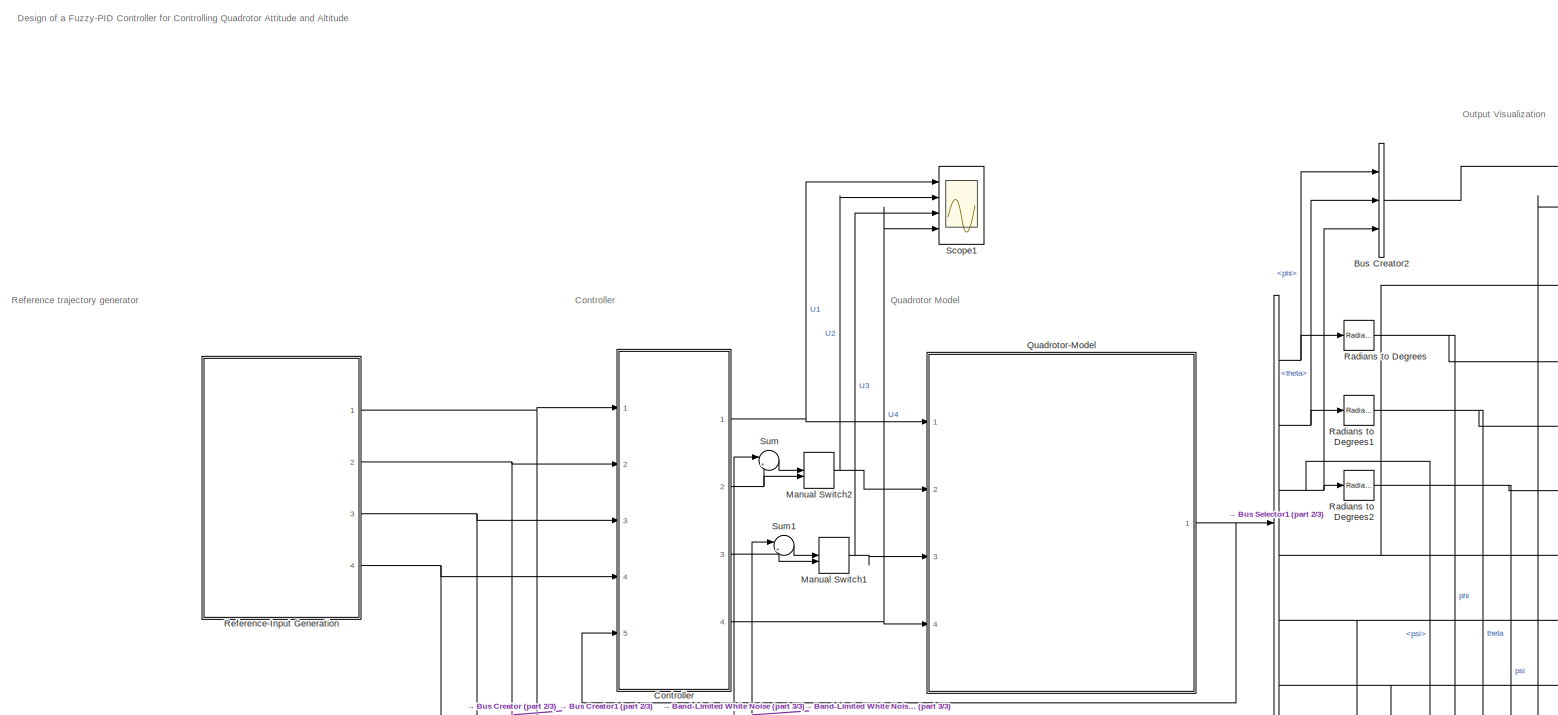
[diagram: root canvas - part 1/3, full width, middle band]
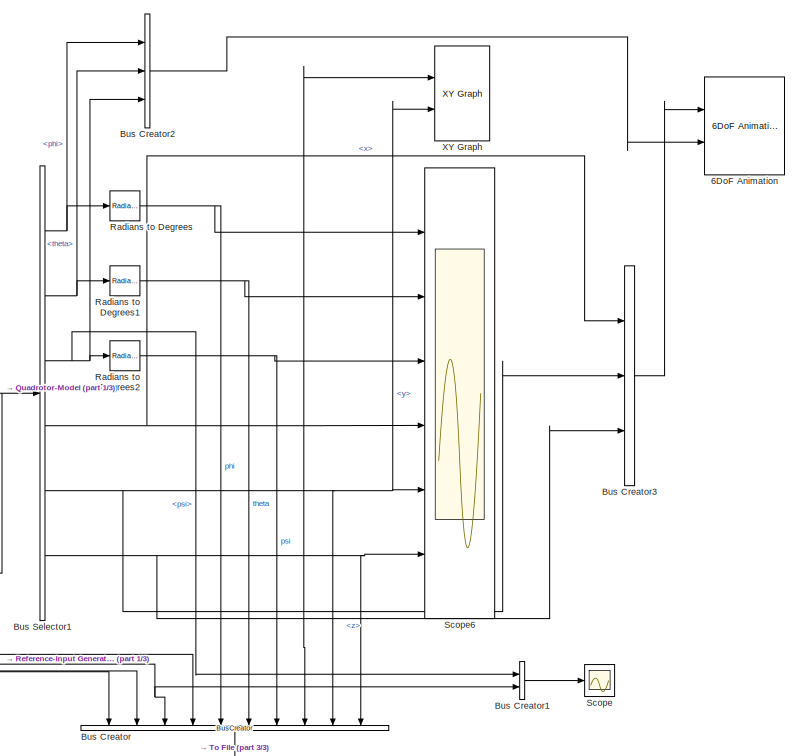
[diagram: root canvas - part 2/3, middle right region]
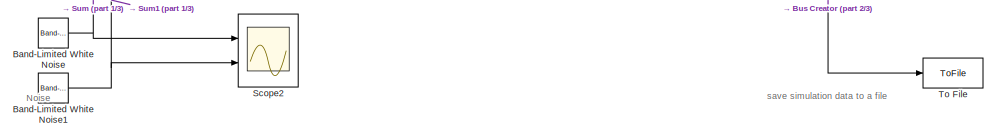
[diagram: root canvas - part 3/3, bottom center region]
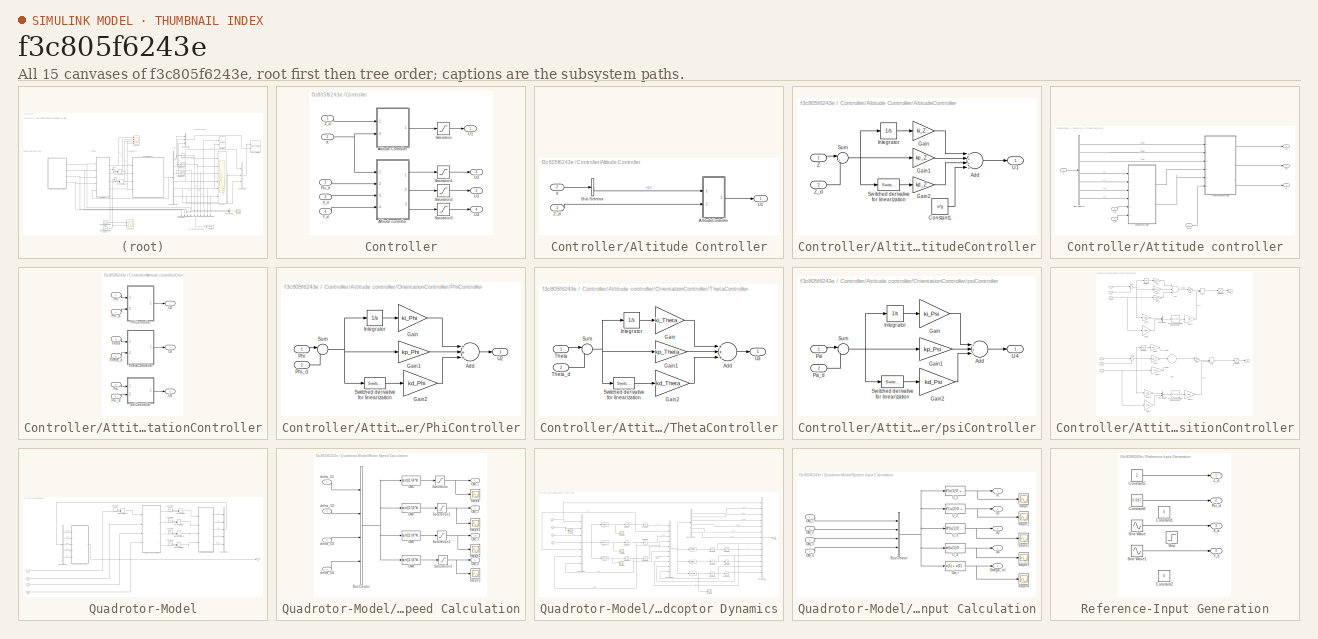
[diagram: thumbnail index - all 15 canvases of the model, root first then tree order]
MODEL slx_f3c805f6243e
KIND model
CONFIG AbsTol = auto
CONFIG EnableMultiTasking = off
CONFIG FixedStep = 1/250
CONFIG MaxStep = auto
CONFIG MinStep = auto
CONFIG RelTol = 1e-3
CONFIG SampleTimeConstraint = Unconstrained
CONFIG Solver = FixedStepAuto
CONFIG SolverName = FixedStepAuto
CONFIG StartTime = 0.0
CONFIG StopTime = 11
BLOCK [Reference] 6DoF Animation  REF=aerolibanim/6DoF Animation
  Ports = [2]
  SourceBlock = aerolibanim/6DoF Animation
  SourceProductBaseCode = AE
  SourceProductName = Aerospace Blockset
  SourceType = 6DoF_Animation
BLOCK [Reference] Band-Limited White Noise  REF=simulink/Sources/Band-Limited
White Noise
  Ports = [0, 1]
  SourceBlock = simulink/Sources/Band-Limited\nWhite Noise
  SourceProductBaseCode = SL
  SourceProductName = Simulink
  SourceType = Band-Limited White Noise.
BLOCK [Reference] Band-Limited White Noise1  REF=simulink/Sources/Band-Limited
White Noise
  Ports = [0, 1]
  SourceBlock = simulink/Sources/Band-Limited\nWhite Noise
  SourceProductBaseCode = SL
  SourceProductName = Simulink
  SourceType = Band-Limited White Noise.
BLOCK [BusCreator] Bus Creator
  DisplayOption = bar
  InheritFromInputs = on
  Inputs = 10
  Ports = [10, 1]
BLOCK [BusCreator] Bus Creator1
  DisplayOption = bar
  InheritFromInputs = on
  Inputs = 2
  Ports = [2, 1]
BLOCK [BusCreator] Bus Creator2
  DisplayOption = bar
  InheritFromInputs = on
  Inputs = 3
  Ports = [3, 1]
BLOCK [BusCreator] Bus Creator3
  DisplayOption = bar
  InheritFromInputs = on
  Inputs = 3
  Ports = [3, 1]
BLOCK [BusSelector] Bus Selector1
  OutputAsBus = off
  OutputSignals = phi,theta,psi,x,y,z
  Ports = [1, 6]
BLOCK [SubSystem] Controller
  Ports = [5, 4]
  RequestExecContextInheritance = off
  Variant = off
BLOCK [SubSystem] Controller/Altitude Controller
  Ports = [2, 1]
  RequestExecContextInheritance = off
  Variant = off
BLOCK [SubSystem] Controller/Altitude Controller/AltitudeController
  Ports = [2, 1]
  RequestExecContextInheritance = off
  Variant = off
BLOCK [Sum] Controller/Altitude Controller/AltitudeController/Add
  InputSameDT = off
  Inputs = ++++
  OutDataTypeStr = Inherit: Inherit via internal rule
  Ports = [4, 1]
  SaturateOnIntegerOverflow = off
BLOCK [Constant] Controller/Altitude Controller/AltitudeController/Constant1
  Value = m*g
BLOCK [Gain] Controller/Altitude Controller/AltitudeController/Gain
  Gain = ki_Z
  OutDataTypeStr = Inherit: Inherit via internal rule
  ParamDataTypeStr = Inherit: Inherit via internal rule
  SaturateOnIntegerOverflow = off
BLOCK [Gain] Controller/Altitude Controller/AltitudeController/Gain1
  Gain = kp_Z
  OutDataTypeStr = Inherit: Inherit via internal rule
  ParamDataTypeStr = Inherit: Inherit via internal rule
  SaturateOnIntegerOverflow = off
BLOCK [Gain] Controller/Altitude Controller/AltitudeController/Gain2
  Gain = kd_Z
  OutDataTypeStr = Inherit: Inherit via internal rule
  ParamDataTypeStr = Inherit: Inherit via internal rule
  SaturateOnIntegerOverflow = off
BLOCK [Integrator] Controller/Altitude Controller/AltitudeController/Integrator
  Ports = [1, 1]
BLOCK [Sum] Controller/Altitude Controller/AltitudeController/Sum
  IconShape = round
  InputSameDT = off
  Inputs = |+-
  OutDataTypeStr = Inherit: Inherit via internal rule
  Ports = [2, 1]
  SaturateOnIntegerOverflow = off
BLOCK [Reference] Controller/Altitude Controller/AltitudeController/Switched derivative for linearization  REF=simulink_extras/Linearization/Switched
derivative for
linearization
  Ports = [1, 1]
  SourceBlock = simulink_extras/Linearization/Switched\nderivative for\nlinearization
  SourceProductBaseCode = SL
  SourceProductName = Simulink
  SourceType = Derivative for linearization
BLOCK [Outport] Controller/Altitude Controller/AltitudeController/U1
  IconDisplay = Port number
BLOCK [Inport] Controller/Altitude Controller/AltitudeController/Z
  IconDisplay = Port number
BLOCK [Inport] Controller/Altitude Controller/AltitudeController/Z_d
  IconDisplay = Port number
  Port = 2
BLOCK [BusSelector] Controller/Altitude Controller/Bus Selector
  OutputAsBus = off
  OutputSignals = z
  Ports = [1, 1]
BLOCK [Outport] Controller/Altitude Controller/U1
  IconDisplay = Port number
BLOCK [Inport] Controller/Altitude Controller/X
  IconDisplay = Port number
  Port = 2
BLOCK [Inport] Controller/Altitude Controller/Z_d
  IconDisplay = Port number
BLOCK [SubSystem] Controller/Attitude controller
  Ports = [4, 3]
  RequestExecContextInheritance = off
  Variant = off
BLOCK [BusSelector] Controller/Attitude controller/Bus Selector
  OutputAsBus = off
  OutputSignals = phi,theta,psi,x,y,x',y'
  Ports = [1, 7]
BLOCK [SubSystem] Controller/Attitude controller/OrientationController
  Ports = [6, 3]
  RequestExecContextInheritance = off
  Variant = off
BLOCK [Inport] Controller/Attitude controller/OrientationController/Phi
  IconDisplay = Port number
BLOCK [SubSystem] Controller/Attitude controller/OrientationController/PhiController
  Ports = [2, 1]
  RequestExecContextInheritance = off
  Variant = off
BLOCK [Sum] Controller/Attitude controller/OrientationController/PhiController/Add
  InputSameDT = off
  Inputs = +++
  OutDataTypeStr = Inherit: Inherit via internal rule
  Ports = [3, 1]
  SaturateOnIntegerOverflow = off
BLOCK [Gain] Controller/Attitude controller/OrientationController/PhiController/Gain
  Gain = ki_Phi
  OutDataTypeStr = Inherit: Inherit via internal rule
  ParamDataTypeStr = Inherit: Inherit via internal rule
  SaturateOnIntegerOverflow = off
BLOCK [Gain] Controller/Attitude controller/OrientationController/PhiController/Gain1
  Gain = kp_Phi
  OutDataTypeStr = Inherit: Inherit via internal rule
  ParamDataTypeStr = Inherit: Inherit via internal rule
  SaturateOnIntegerOverflow = off
BLOCK [Gain] Controller/Attitude controller/OrientationController/PhiController/Gain2
  Gain = kd_Phi
  OutDataTypeStr = Inherit: Inherit via internal rule
  ParamDataTypeStr = Inherit: Inherit via internal rule
  SaturateOnIntegerOverflow = off
BLOCK [Integrator] Controller/Attitude controller/OrientationController/PhiController/Integrator
  Ports = [1, 1]
BLOCK [Inport] Controller/Attitude controller/OrientationController/PhiController/Phi
  IconDisplay = Port number
BLOCK [Inport] Controller/Attitude controller/OrientationController/PhiController/Phi_d
  IconDisplay = Port number
  Port = 2
BLOCK [Sum] Controller/Attitude controller/OrientationController/PhiController/Sum
  IconShape = round
  InputSameDT = off
  Inputs = |-+
  OutDataTypeStr = Inherit: Inherit via internal rule
  Ports = [2, 1]
  SaturateOnIntegerOverflow = off
BLOCK [Reference] Controller/Attitude controller/OrientationController/PhiController/Switched derivative for linearization  REF=simulink_extras/Linearization/Switched
derivative for
linearization
  Ports = [1, 1]
  SourceBlock = simulink_extras/Linearization/Switched\nderivative for\nlinearization
  SourceProductBaseCode = SL
  SourceProductName = Simulink
  SourceType = Derivative for linearization
BLOCK [Outport] Controller/Attitude controller/OrientationController/PhiController/U2
  IconDisplay = Port number
BLOCK [Inport] Controller/Attitude controller/OrientationController/Phi_d
  IconDisplay = Port number
  Port = 4
BLOCK [Inport] Controller/Attitude controller/OrientationController/Psi
  IconDisplay = Port number
  Port = 3
BLOCK [Inport] Controller/Attitude controller/OrientationController/Psi_d
  IconDisplay = Port number
  Port = 6
BLOCK [Inport] Controller/Attitude controller/OrientationController/Theta
  IconDisplay = Port number
  Port = 2
BLOCK [SubSystem] Controller/Attitude controller/OrientationController/ThetaController
  Ports = [2, 1]
  RequestExecContextInheritance = off
  Variant = off
BLOCK [Sum] Controller/Attitude controller/OrientationController/ThetaController/Add
  InputSameDT = off
  Inputs = +++
  OutDataTypeStr = Inherit: Inherit via internal rule
  Ports = [3, 1]
  SaturateOnIntegerOverflow = off
BLOCK [Gain] Controller/Attitude controller/OrientationController/ThetaController/Gain
  Gain = ki_Theta
  OutDataTypeStr = Inherit: Inherit via internal rule
  ParamDataTypeStr = Inherit: Inherit via internal rule
  SaturateOnIntegerOverflow = off
BLOCK [Gain] Controller/Attitude controller/OrientationController/ThetaController/Gain1
  Gain = kp_Theta
  OutDataTypeStr = Inherit: Inherit via internal rule
  ParamDataTypeStr = Inherit: Inherit via internal rule
  SaturateOnIntegerOverflow = off
BLOCK [Gain] Controller/Attitude controller/OrientationController/ThetaController/Gain2
  Gain = kd_Theta
  OutDataTypeStr = Inherit: Inherit via internal rule
  ParamDataTypeStr = Inherit: Inherit via internal rule
  SaturateOnIntegerOverflow = off
BLOCK [Integrator] Controller/Attitude controller/OrientationController/ThetaController/Integrator
  Ports = [1, 1]
BLOCK [Sum] Controller/Attitude controller/OrientationController/ThetaController/Sum
  IconShape = round
  InputSameDT = off
  Inputs = |-+
  OutDataTypeStr = Inherit: Inherit via internal rule
  Ports = [2, 1]
  SaturateOnIntegerOverflow = off
BLOCK [Reference] Controller/Attitude controller/OrientationController/ThetaController/Switched derivative for linearization  REF=simulink_extras/Linearization/Switched
derivative for
linearization
  Ports = [1, 1]
  SourceBlock = simulink_extras/Linearization/Switched\nderivative for\nlinearization
  SourceProductBaseCode = SL
  SourceProductName = Simulink
  SourceType = Derivative for linearization
BLOCK [Inport] Controller/Attitude controller/OrientationController/ThetaController/Theta
  IconDisplay = Port number
BLOCK [Inport] Controller/Attitude controller/OrientationController/ThetaController/Theta_d
  IconDisplay = Port number
  Port = 2
BLOCK [Outport] Controller/Attitude controller/OrientationController/ThetaController/U3
  IconDisplay = Port number
BLOCK [Inport] Controller/Attitude controller/OrientationController/Theta_d
  IconDisplay = Port number
  Port = 5
BLOCK [Outport] Controller/Attitude controller/OrientationController/U2
  IconDisplay = Port number
BLOCK [Outport] Controller/Attitude controller/OrientationController/U3
  IconDisplay = Port number
  Port = 2
BLOCK [Outport] Controller/Attitude controller/OrientationController/U4
  IconDisplay = Port number
  Port = 3
BLOCK [SubSystem] Controller/Attitude controller/OrientationController/psiController
  Ports = [2, 1]
  RequestExecContextInheritance = off
  Variant = off
BLOCK [Sum] Controller/Attitude controller/OrientationController/psiController/Add
  InputSameDT = off
  Inputs = +++
  OutDataTypeStr = Inherit: Inherit via internal rule
  Ports = [3, 1]
  SaturateOnIntegerOverflow = off
BLOCK [Gain] Controller/Attitude controller/OrientationController/psiController/Gain
  Gain = ki_Psi
  OutDataTypeStr = Inherit: Inherit via internal rule
  ParamDataTypeStr = Inherit: Inherit via internal rule
  SaturateOnIntegerOverflow = off
BLOCK [Gain] Controller/Attitude controller/OrientationController/psiController/Gain1
  Gain = kp_Psi
  OutDataTypeStr = Inherit: Inherit via internal rule
  ParamDataTypeStr = Inherit: Inherit via internal rule
  SaturateOnIntegerOverflow = off
BLOCK [Gain] Controller/Attitude controller/OrientationController/psiController/Gain2
  Gain = kd_Psi
  OutDataTypeStr = Inherit: Inherit via internal rule
  ParamDataTypeStr = Inherit: Inherit via internal rule
  SaturateOnIntegerOverflow = off
BLOCK [Integrator] Controller/Attitude controller/OrientationController/psiController/Integrator
  Ports = [1, 1]
BLOCK [Inport] Controller/Attitude controller/OrientationController/psiController/Psi
  IconDisplay = Port number
BLOCK [Inport] Controller/Attitude controller/OrientationController/psiController/Psi_d
  IconDisplay = Port number
  Port = 2
BLOCK [Sum] Controller/Attitude controller/OrientationController/psiController/Sum
  IconShape = round
  InputSameDT = off
  Inputs = |-+
  OutDataTypeStr = Inherit: Inherit via internal rule
  Ports = [2, 1]
  SaturateOnIntegerOverflow = off
BLOCK [Reference] Controller/Attitude controller/OrientationController/psiController/Switched derivative for linearization  REF=simulink_extras/Linearization/Switched
derivative for
linearization
  Ports = [1, 1]
  SourceBlock = simulink_extras/Linearization/Switched\nderivative for\nlinearization
  SourceProductBaseCode = SL
  SourceProductName = Simulink
  SourceType = Derivative for linearization
BLOCK [Outport] Controller/Attitude controller/OrientationController/psiController/U4
  IconDisplay = Port number
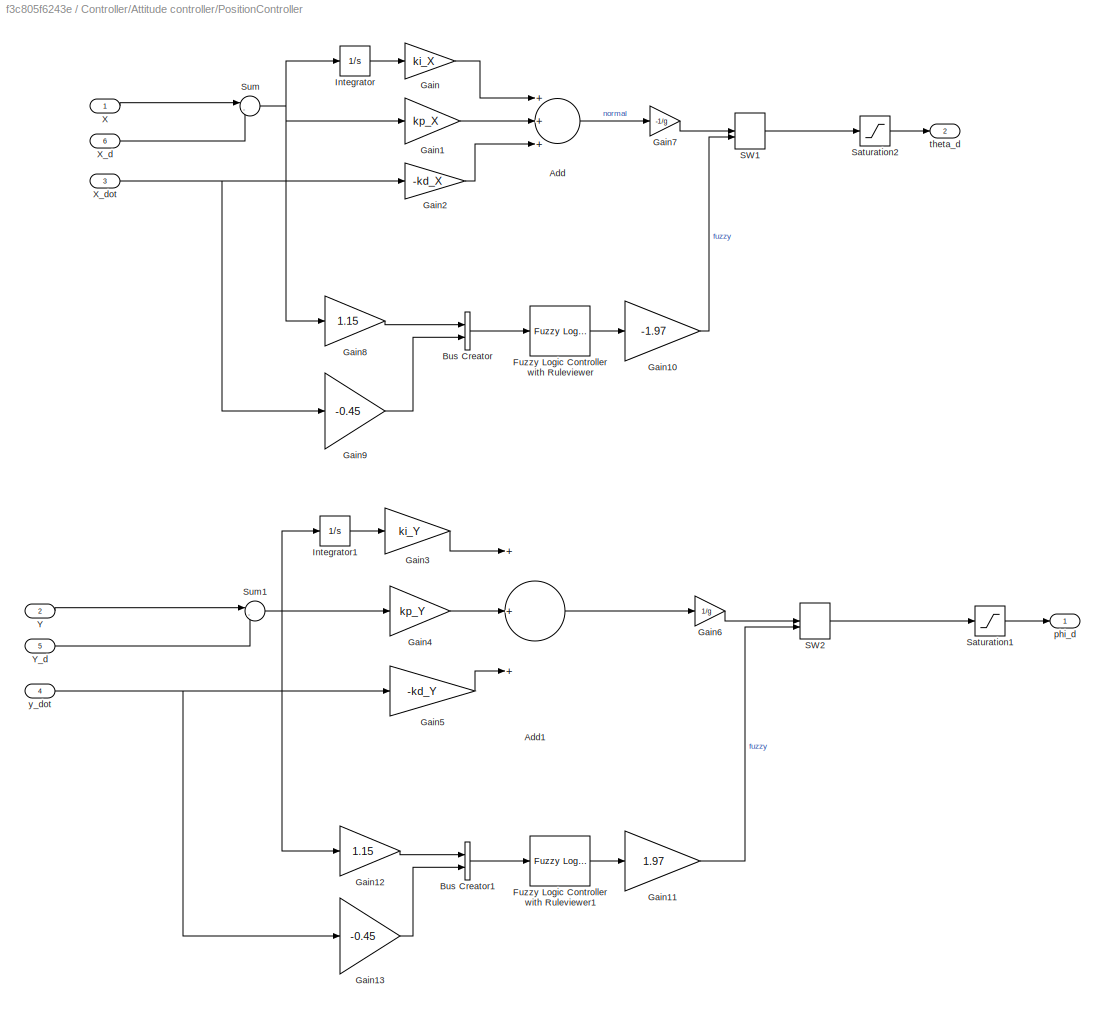
BLOCK [SubSystem] Controller/Attitude controller/PositionController
  Ports = [6, 2]
  RequestExecContextInheritance = off
  Variant = off
BLOCK [Sum] Controller/Attitude controller/PositionController/Add
  InputSameDT = off
  Inputs = +++
  OutDataTypeStr = Inherit: Inherit via internal rule
  Ports = [3, 1]
  SaturateOnIntegerOverflow = off
BLOCK [Sum] Controller/Attitude controller/PositionController/Add1
  InputSameDT = off
  Inputs = +++
  OutDataTypeStr = Inherit: Inherit via internal rule
  Ports = [3, 1]
  SaturateOnIntegerOverflow = off
BLOCK [BusCreator] Controller/Attitude controller/PositionController/Bus Creator
  DisplayOption = bar
  InheritFromInputs = on
  Inputs = 2
  Ports = [2, 1]
BLOCK [BusCreator] Controller/Attitude controller/PositionController/Bus Creator1
  DisplayOption = bar
  InheritFromInputs = on
  Inputs = 2
  Ports = [2, 1]
BLOCK [Reference] Controller/Attitude controller/PositionController/Fuzzy Logic Controller with Ruleviewer  REF=fuzblock/Fuzzy Logic   (lib defined in mdl_858b3b3e7478)
Controller 
with Ruleviewer
  Ports = [1, 1]
  SourceBlock = fuzblock/Fuzzy Logic \nController \nwith Ruleviewer
  SourceProductBaseCode = FL
  SourceProductName = Fuzzy Logic Toolbox
  SourceType = Fuzzy Inference System
BLOCK [Reference] Controller/Attitude controller/PositionController/Fuzzy Logic Controller with Ruleviewer1  REF=fuzblock/Fuzzy Logic   (lib defined in mdl_858b3b3e7478)
Controller 
with Ruleviewer
  Ports = [1, 1]
  SourceBlock = fuzblock/Fuzzy Logic \nController \nwith Ruleviewer
  SourceProductBaseCode = FL
  SourceProductName = Fuzzy Logic Toolbox
  SourceType = Fuzzy Inference System
BLOCK [Gain] Controller/Attitude controller/PositionController/Gain
  Gain = ki_X
  OutDataTypeStr = Inherit: Inherit via internal rule
  ParamDataTypeStr = Inherit: Inherit via internal rule
  SaturateOnIntegerOverflow = off
BLOCK [Gain] Controller/Attitude controller/PositionController/Gain1
  Gain = kp_X
  OutDataTypeStr = Inherit: Inherit via internal rule
  ParamDataTypeStr = Inherit: Inherit via internal rule
  SaturateOnIntegerOverflow = off
BLOCK [Gain] Controller/Attitude controller/PositionController/Gain10
  Gain = -1.97
  OutDataTypeStr = Inherit: Inherit via internal rule
  ParamDataTypeStr = Inherit: Inherit via internal rule
  SaturateOnIntegerOverflow = off
BLOCK [Gain] Controller/Attitude controller/PositionController/Gain11
  Gain = 1.97
  OutDataTypeStr = Inherit: Inherit via internal rule
  ParamDataTypeStr = Inherit: Inherit via internal rule
  SaturateOnIntegerOverflow = off
BLOCK [Gain] Controller/Attitude controller/PositionController/Gain12
  Gain = 1.15
  OutDataTypeStr = Inherit: Inherit via internal rule
  ParamDataTypeStr = Inherit: Inherit via internal rule
  SaturateOnIntegerOverflow = off
BLOCK [Gain] Controller/Attitude controller/PositionController/Gain13
  Gain = -0.45
  OutDataTypeStr = Inherit: Inherit via internal rule
  ParamDataTypeStr = Inherit: Inherit via internal rule
  SaturateOnIntegerOverflow = off
BLOCK [Gain] Controller/Attitude controller/PositionController/Gain2
  Gain = -kd_X
  OutDataTypeStr = Inherit: Inherit via internal rule
  ParamDataTypeStr = Inherit: Inherit via internal rule
  SaturateOnIntegerOverflow = off
BLOCK [Gain] Controller/Attitude controller/PositionController/Gain3
  Gain = ki_Y
  OutDataTypeStr = Inherit: Inherit via internal rule
  ParamDataTypeStr = Inherit: Inherit via internal rule
  SaturateOnIntegerOverflow = off
BLOCK [Gain] Controller/Attitude controller/PositionController/Gain4
  Gain = kp_Y
  OutDataTypeStr = Inherit: Inherit via internal rule
  ParamDataTypeStr = Inherit: Inherit via internal rule
  SaturateOnIntegerOverflow = off
BLOCK [Gain] Controller/Attitude controller/PositionController/Gain5
  Gain = -kd_Y
  OutDataTypeStr = Inherit: Inherit via internal rule
  ParamDataTypeStr = Inherit: Inherit via internal rule
  SaturateOnIntegerOverflow = off
BLOCK [Gain] Controller/Attitude controller/PositionController/Gain6
  Gain = 1/g
  OutDataTypeStr = Inherit: Inherit via internal rule
  ParamDataTypeStr = Inherit: Inherit via internal rule
  SaturateOnIntegerOverflow = off
BLOCK [Gain] Controller/Attitude controller/PositionController/Gain7
  Gain = -1/g
  OutDataTypeStr = Inherit: Inherit via internal rule
  ParamDataTypeStr = Inherit: Inherit via internal rule
  SaturateOnIntegerOverflow = off
BLOCK [Gain] Controller/Attitude controller/PositionController/Gain8
  Gain = 1.15
  OutDataTypeStr = Inherit: Inherit via internal rule
  ParamDataTypeStr = Inherit: Inherit via internal rule
  SaturateOnIntegerOverflow = off
BLOCK [Gain] Controller/Attitude controller/PositionController/Gain9
  Gain = -0.45
  OutDataTypeStr = Inherit: Inherit via internal rule
  ParamDataTypeStr = Inherit: Inherit via internal rule
  SaturateOnIntegerOverflow = off
BLOCK [Integrator] Controller/Attitude controller/PositionController/Integrator
  Ports = [1, 1]
BLOCK [Integrator] Controller/Attitude controller/PositionController/Integrator1
  Ports = [1, 1]
BLOCK [ManualSwitch] Controller/Attitude controller/PositionController/SW1
  CurrentSetting = 0
BLOCK [ManualSwitch] Controller/Attitude controller/PositionController/SW2
  CurrentSetting = 0
BLOCK [Saturate] Controller/Attitude controller/PositionController/Saturation1
  InputPortMap = u0
  LowerLimit = -0.3
  Ports = [1, 1]
  UpperLimit = 0.3
BLOCK [Saturate] Controller/Attitude controller/PositionController/Saturation2
  InputPortMap = u0
  LowerLimit = -0.3
  Ports = [1, 1]
  UpperLimit = 0.3
BLOCK [Sum] Controller/Attitude controller/PositionController/Sum
  IconShape = round
  InputSameDT = off
  Inputs = |-+
  OutDataTypeStr = Inherit: Inherit via internal rule
  Ports = [2, 1]
  SaturateOnIntegerOverflow = off
BLOCK [Sum] Controller/Attitude controller/PositionController/Sum1
  IconShape = round
  InputSameDT = off
  Inputs = |-+
  OutDataTypeStr = Inherit: Inherit via internal rule
  Ports = [2, 1]
  SaturateOnIntegerOverflow = off
BLOCK [Inport] Controller/Attitude controller/PositionController/X
  IconDisplay = Port number
BLOCK [Inport] Controller/Attitude controller/PositionController/X_d
  IconDisplay = Port number
  Port = 6
BLOCK [Inport] Controller/Attitude controller/PositionController/X_dot
  IconDisplay = Port number
  Port = 3
BLOCK [Inport] Controller/Attitude controller/PositionController/Y
  IconDisplay = Port number
  Port = 2
BLOCK [Inport] Controller/Attitude controller/PositionController/Y_d
  IconDisplay = Port number
  Port = 5
BLOCK [Outport] Controller/Attitude controller/PositionController/phi_d
  IconDisplay = Port number
BLOCK [Outport] Controller/Attitude controller/PositionController/theta_d
  IconDisplay = Port number
  Port = 2
BLOCK [Inport] Controller/Attitude controller/PositionController/y_dot
  IconDisplay = Port number
  Port = 4
BLOCK [Inport] Controller/Attitude controller/Psi_d
  IconDisplay = Port number
  Port = 2
BLOCK [Outport] Controller/Attitude controller/U2
  IconDisplay = Port number
BLOCK [Outport] Controller/Attitude controller/U3
  IconDisplay = Port number
  Port = 2
BLOCK [Outport] Controller/Attitude controller/U4
  IconDisplay = Port number
  Port = 3
BLOCK [Inport] Controller/Attitude controller/X
  IconDisplay = Port number
BLOCK [Inport] Controller/Attitude controller/X_d
  IconDisplay = Port number
  Port = 3
BLOCK [Inport] Controller/Attitude controller/Y_d
  IconDisplay = Port number
  Port = 4
BLOCK [Inport] Controller/Psi_d
  IconDisplay = Port number
  Port = 2
BLOCK [Saturate] Controller/Saturation
  InputPortMap = u0
  LowerLimit = -91
  Ports = [1, 1]
  UpperLimit = 91
BLOCK [Saturate] Controller/Saturation1
  InputPortMap = u0
  LowerLimit = -23
  Ports = [1, 1]
  UpperLimit = 23
BLOCK [Saturate] Controller/Saturation2
  InputPortMap = u0
  LowerLimit = -23
  Ports = [1, 1]
  UpperLimit = 23
BLOCK [Saturate] Controller/Saturation3
  InputPortMap = u0
  LowerLimit = -1.3
  Ports = [1, 1]
  UpperLimit = 1.3
BLOCK [Outport] Controller/U1
  IconDisplay = Port number
BLOCK [Outport] Controller/U2
  IconDisplay = Port number
  Port = 2
BLOCK [Outport] Controller/U3
  IconDisplay = Port number
  Port = 3
BLOCK [Outport] Controller/U4
  IconDisplay = Port number
  Port = 4
BLOCK [Inport] Controller/X
  IconDisplay = Port number
  Port = 5
BLOCK [Inport] Controller/X_d
  IconDisplay = Port number
  Port = 3
BLOCK [Inport] Controller/Y_d
  IconDisplay = Port number
  Port = 4
BLOCK [Inport] Controller/Z_d
  IconDisplay = Port number
BLOCK [ManualSwitch] Manual Switch1
BLOCK [ManualSwitch] Manual Switch2
BLOCK [SubSystem] Quadrotor-Model
  Ports = [4, 1]
  RequestExecContextInheritance = off
  Variant = off
BLOCK [BusCreator] Quadrotor-Model/Bus Creator
  DisplayOption = bar
  InheritFromInputs = on
  Inputs = 5
  Ports = [5, 1]
BLOCK [BusSelector] Quadrotor-Model/Bus Selector
  OutputAsBus = off
  OutputSignals = OM_rel,U2,U3,U4,U1
  Ports = [1, 5]
BLOCK [Constant] Quadrotor-Model/Constant
  Value = 300
BLOCK [Constant] Quadrotor-Model/Constant1
  Value = 300
BLOCK [Constant] Quadrotor-Model/Constant2
  Value = 400
BLOCK [Constant] Quadrotor-Model/Constant3
  Value = 300
BLOCK [Constant] Quadrotor-Model/Constant4
  Value = 0
BLOCK [ManualSwitch] Quadrotor-Model/Manual Switch
  CurrentSetting = 0
BLOCK [ManualSwitch] Quadrotor-Model/Manual Switch1
  CurrentSetting = 0
BLOCK [ManualSwitch] Quadrotor-Model/Manual Switch2
  CurrentSetting = 0
BLOCK [ManualSwitch] Quadrotor-Model/Manual Switch3
  CurrentSetting = 0
BLOCK [ManualSwitch] Quadrotor-Model/Manual Switch4
  CurrentSetting = 0
BLOCK [SubSystem] Quadrotor-Model/Motor Speed Calculation
  Ports = [4, 4]
  RequestExecContextInheritance = off
  Variant = off
BLOCK [BusCreator] Quadrotor-Model/Motor Speed Calculation/Bus Creator
  DisplayOption = bar
  InheritFromInputs = on
  Inputs = 4
  Ports = [4, 1]
BLOCK [Fcn] Quadrotor-Model/Motor Speed Calculation/OM1
  Expr = sqrt((1/(4*kf))*u(1) + (1/(2*kf))*u(3) + (1/(4*km))*u(4))
BLOCK [Fcn] Quadrotor-Model/Motor Speed Calculation/OM2
  Expr = sqrt((1/(4*kf))*u(1) - (1/(2*kf))*u(2) - (1/(4*km))*u(4))
BLOCK [Fcn] Quadrotor-Model/Motor Speed Calculation/OM3
  Expr = sqrt((1/(4*kf))*u(1) - (1/(2*kf))*u(3) + (1/(4*km))*u(4))
BLOCK [Fcn] Quadrotor-Model/Motor Speed Calculation/OM4
  Expr = sqrt((1/(4*kf))*u(1) + (1/(2*kf))*u(2) - (1/(4*km))*u(4))
BLOCK [Outport] Quadrotor-Model/Motor Speed Calculation/OM_1
  IconDisplay = Port number
BLOCK [Outport] Quadrotor-Model/Motor Speed Calculation/OM_2
  IconDisplay = Port number
  Port = 2
BLOCK [Outport] Quadrotor-Model/Motor Speed Calculation/OM_3
  IconDisplay = Port number
  Port = 3
BLOCK [Outport] Quadrotor-Model/Motor Speed Calculation/OM_4
  IconDisplay = Port number
  Port = 4
BLOCK [Saturate] Quadrotor-Model/Motor Speed Calculation/Saturation
  InputPortMap = u0
  LowerLimit = 0
  Ports = [1, 1]
  UpperLimit = omega_max
BLOCK [Saturate] Quadrotor-Model/Motor Speed Calculation/Saturation1
  InputPortMap = u0
  LowerLimit = 0
  Ports = [1, 1]
  UpperLimit = omega_max
BLOCK [Saturate] Quadrotor-Model/Motor Speed Calculation/Saturation2
  InputPortMap = u0
  LowerLimit = 0
  Ports = [1, 1]
  UpperLimit = omega_max
BLOCK [Saturate] Quadrotor-Model/Motor Speed Calculation/Saturation3
  InputPortMap = u0
  LowerLimit = 0
  Ports = [1, 1]
  UpperLimit = omega_max
BLOCK [Scope] Quadrotor-Model/Motor Speed Calculation/Scope
  NumInputPorts = 1
  Ports = [1]
  ScopeSpecificationString = Simulink.scopes.TimeScopeBlockCfg('CurrentConfiguration', extmgr.ConfigurationSet(extmgr.Configuration('Core','General UI',true),extmgr.Configuration('Core','Source UI',true),extmgr.Configuration('Sources','WiredSimulink',true,'DataLoggingVariableName','ScopeData6'),extmgr.Configuration('Visuals','Time Domain',true,'SerializedDisplays',{struct('MinYLimReal','-542.21204','MaxYLimReal','4879.90839',...<+1387ch>
BLOCK [Scope] Quadrotor-Model/Motor Speed Calculation/Scope1
  NumInputPorts = 1
  Ports = [1]
  ScopeSpecificationString = Simulink.scopes.TimeScopeBlockCfg('CurrentConfiguration', extmgr.ConfigurationSet(extmgr.Configuration('Core','General UI',true),extmgr.Configuration('Core','Source UI',true),extmgr.Configuration('Sources','WiredSimulink',true,'DataLoggingVariableName','ScopeData7'),extmgr.Configuration('Visuals','Time Domain',true,'SerializedDisplays',{struct('MinYLimReal','-29.63084','MaxYLimReal','266.67754','Y...<+1380ch>
BLOCK [Scope] Quadrotor-Model/Motor Speed Calculation/Scope2
  NumInputPorts = 1
  Ports = [1]
  ScopeSpecificationString = Simulink.scopes.TimeScopeBlockCfg('CurrentConfiguration', extmgr.ConfigurationSet(extmgr.Configuration('Core','General UI',true),extmgr.Configuration('Core','Source UI',true),extmgr.Configuration('Sources','WiredSimulink',true,'DataLoggingVariableName','ScopeData8'),extmgr.Configuration('Visuals','Time Domain',true,'SerializedDisplays',{struct('MinYLimReal','-1149.15755','MaxYLimReal','10342.41797...<+1396ch>
BLOCK [Scope] Quadrotor-Model/Motor Speed Calculation/Scope3
  NumInputPorts = 1
  Ports = [1]
  ScopeSpecificationString = Simulink.scopes.TimeScopeBlockCfg('CurrentConfiguration', extmgr.ConfigurationSet(extmgr.Configuration('Core','General UI',true),extmgr.Configuration('Core','Source UI',true),extmgr.Configuration('Sources','WiredSimulink',true,'DataLoggingVariableName','ScopeData9'),extmgr.Configuration('Visuals','Time Domain',true,'SerializedDisplays',{struct('MinYLimReal','-29.63084','MaxYLimReal','266.67754','Y...<+1380ch>
BLOCK [Inport] Quadrotor-Model/Motor Speed Calculation/delta_U1
  IconDisplay = Port number
BLOCK [Inport] Quadrotor-Model/Motor Speed Calculation/delta_U2
  IconDisplay = Port number
  Port = 2
BLOCK [Inport] Quadrotor-Model/Motor Speed Calculation/delta_U3
  IconDisplay = Port number
  Port = 3
BLOCK [Inport] Quadrotor-Model/Motor Speed Calculation/delta_U4
  IconDisplay = Port number
  Port = 4
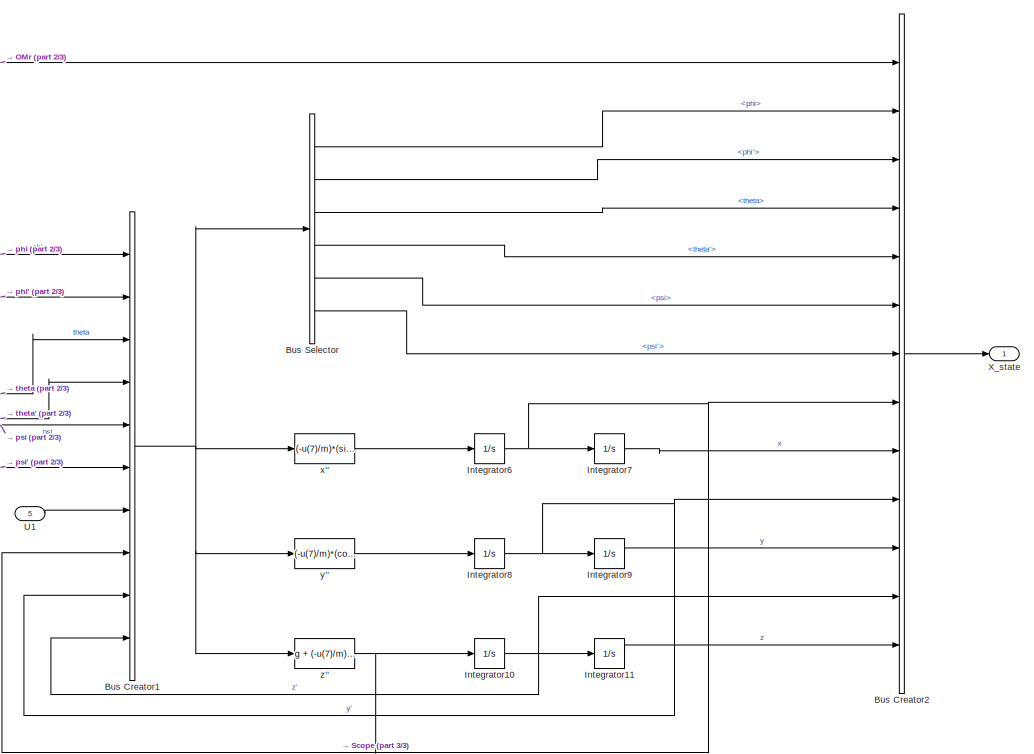
[diagram: Quadrotor-Model/Quadcoptor Dynamics - part 1/3, right side, full height]
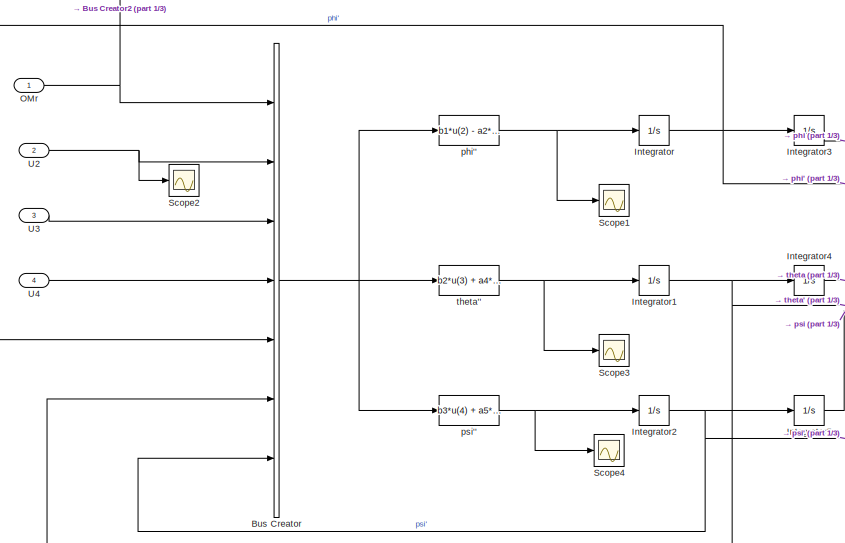
[diagram: Quadrotor-Model/Quadcoptor Dynamics - part 2/3, middle left region]
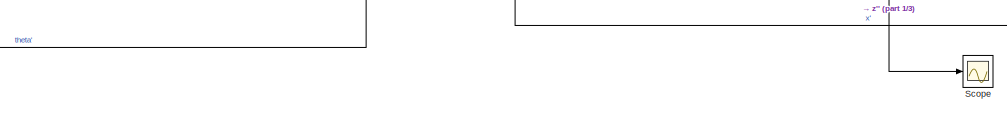
[diagram: Quadrotor-Model/Quadcoptor Dynamics - part 3/3, bottom center region]
BLOCK [SubSystem] Quadrotor-Model/Quadcoptor Dynamics
  Ports = [5, 1]
  RequestExecContextInheritance = off
  Variant = off
BLOCK [BusCreator] Quadrotor-Model/Quadcoptor Dynamics/Bus Creator
  DisplayOption = bar
  InheritFromInputs = on
  Inputs = 7
  Ports = [7, 1]
BLOCK [BusCreator] Quadrotor-Model/Quadcoptor Dynamics/Bus Creator1
  DisplayOption = bar
  InheritFromInputs = on
  Inputs = 10
  Ports = [10, 1]
BLOCK [BusCreator] Quadrotor-Model/Quadcoptor Dynamics/Bus Creator2
  DisplayOption = bar
  InheritFromInputs = on
  Inputs = 13
  Ports = [13, 1]
BLOCK [BusSelector] Quadrotor-Model/Quadcoptor Dynamics/Bus Selector
  OutputAsBus = off
  OutputSignals = phi,phi',theta,theta',psi,psi'
  Ports = [1, 6]
BLOCK [Integrator] Quadrotor-Model/Quadcoptor Dynamics/Integrator
  Ports = [1, 1]
BLOCK [Integrator] Quadrotor-Model/Quadcoptor Dynamics/Integrator1
  Ports = [1, 1]
BLOCK [Integrator] Quadrotor-Model/Quadcoptor Dynamics/Integrator10
  Ports = [1, 1]
BLOCK [Integrator] Quadrotor-Model/Quadcoptor Dynamics/Integrator11
  Ports = [1, 1]
BLOCK [Integrator] Quadrotor-Model/Quadcoptor Dynamics/Integrator2
  Ports = [1, 1]
BLOCK [Integrator] Quadrotor-Model/Quadcoptor Dynamics/Integrator3
  Ports = [1, 1]
BLOCK [Integrator] Quadrotor-Model/Quadcoptor Dynamics/Integrator4
  Ports = [1, 1]
BLOCK [Integrator] Quadrotor-Model/Quadcoptor Dynamics/Integrator5
  Ports = [1, 1]
BLOCK [Integrator] Quadrotor-Model/Quadcoptor Dynamics/Integrator6
  Ports = [1, 1]
BLOCK [Integrator] Quadrotor-Model/Quadcoptor Dynamics/Integrator7
  Ports = [1, 1]
BLOCK [Integrator] Quadrotor-Model/Quadcoptor Dynamics/Integrator8
  Ports = [1, 1]
BLOCK [Integrator] Quadrotor-Model/Quadcoptor Dynamics/Integrator9
  Ports = [1, 1]
BLOCK [Inport] Quadrotor-Model/Quadcoptor Dynamics/OMr
  IconDisplay = Port number
BLOCK [Scope] Quadrotor-Model/Quadcoptor Dynamics/Scope
  NumInputPorts = 1
  Ports = [1]
  ScopeSpecificationString = Simulink.scopes.TimeScopeBlockCfg('CurrentConfiguration', extmgr.ConfigurationSet(extmgr.Configuration('Core','General UI',true),extmgr.Configuration('Core','Source UI',true),extmgr.Configuration('Sources','WiredSimulink',true,'DataLoggingVariableName','ScopeData20'),extmgr.Configuration('Visuals','Time Domain',true,'SerializedDisplays',{struct('MinYLimReal','-4568.68378','MaxYLimReal','518.53153'...<+1385ch>
BLOCK [Scope] Quadrotor-Model/Quadcoptor Dynamics/Scope1
  NumInputPorts = 1
  Ports = [1]
  ScopeSpecificationString = Simulink.scopes.TimeScopeBlockCfg('CurrentConfiguration', extmgr.ConfigurationSet(extmgr.Configuration('Core','General UI',true),extmgr.Configuration('Core','Source UI',true),extmgr.Configuration('Sources','WiredSimulink',true,'DataLoggingVariableName','ScopeData10'),extmgr.Configuration('Visuals','Time Domain',true,'SerializedDisplays',{struct('MinYLimReal','-2849.50149','MaxYLimReal','316.61128'...<+1387ch>
BLOCK [Scope] Quadrotor-Model/Quadcoptor Dynamics/Scope2
  NumInputPorts = 1
  Ports = [1]
  ScopeSpecificationString = Simulink.scopes.TimeScopeBlockCfg('CurrentConfiguration', extmgr.ConfigurationSet(extmgr.Configuration('Core','General UI',true),extmgr.Configuration('Core','Source UI',true),extmgr.Configuration('Sources','WiredSimulink',true,'DataLoggingVariableName','ScopeData11'),extmgr.Configuration('Visuals','Time Domain',true,'SerializedDisplays',{struct('MinYLimReal','-1.00000','MaxYLimReal','1.00000','YLa...<+1362ch>
BLOCK [Scope] Quadrotor-Model/Quadcoptor Dynamics/Scope3
  NumInputPorts = 1
  Ports = [1]
  ScopeSpecificationString = Simulink.scopes.TimeScopeBlockCfg('CurrentConfiguration', extmgr.ConfigurationSet(extmgr.Configuration('Core','General UI',true),extmgr.Configuration('Core','Source UI',true),extmgr.Configuration('Sources','WiredSimulink',true,'DataLoggingVariableName','ScopeData2'),extmgr.Configuration('Visuals','Time Domain',true,'SerializedDisplays',{struct('MinYLimReal','-92659.46495','MaxYLimReal','22693.917'...<+1394ch>
BLOCK [Scope] Quadrotor-Model/Quadcoptor Dynamics/Scope4
  NumInputPorts = 1
  Ports = [1]
  ScopeSpecificationString = Simulink.scopes.TimeScopeBlockCfg('CurrentConfiguration', extmgr.ConfigurationSet(extmgr.Configuration('Core','General UI',true),extmgr.Configuration('Core','Source UI',true),extmgr.Configuration('Sources','WiredSimulink',true,'DataLoggingVariableName','ScopeData3'),extmgr.Configuration('Visuals','Time Domain',true,'SerializedDisplays',{struct('MinYLimReal','-140.18285','MaxYLimReal','1261.64565',...<+1384ch>
BLOCK [Inport] Quadrotor-Model/Quadcoptor Dynamics/U1
  IconDisplay = Port number
  Port = 5
BLOCK [Inport] Quadrotor-Model/Quadcoptor Dynamics/U2
  IconDisplay = Port number
  Port = 2
BLOCK [Inport] Quadrotor-Model/Quadcoptor Dynamics/U3
  IconDisplay = Port number
  Port = 3
BLOCK [Inport] Quadrotor-Model/Quadcoptor Dynamics/U4
  IconDisplay = Port number
  Port = 4
BLOCK [Outport] Quadrotor-Model/Quadcoptor Dynamics/X_state
  IconDisplay = Port number
BLOCK [Fcn] Quadrotor-Model/Quadcoptor Dynamics/phi''
  Expr = b1*u(2) - a2*u(6)*u(1) + a1*u(6)*u(7)
BLOCK [Fcn] Quadrotor-Model/Quadcoptor Dynamics/psi''
  Expr = b3*u(4) + a5*u(5)*u(6)
BLOCK [Fcn] Quadrotor-Model/Quadcoptor Dynamics/theta''
  Expr = b2*u(3) + a4*u(5)*u(1) + a3*u(5)*u(7)
BLOCK [Fcn] Quadrotor-Model/Quadcoptor Dynamics/x''
  Expr = (-u(7)/m)*(sin(u(1))*sin(u(5)) + cos(u(1))*cos(u(5))*sin(u(3)))
BLOCK [Fcn] Quadrotor-Model/Quadcoptor Dynamics/y''
  Expr = (-u(7)/m)*(cos(u(1))*sin(u(5))*sin(u(3)) - cos(u(5))*sin(u(1)))
BLOCK [Fcn] Quadrotor-Model/Quadcoptor Dynamics/z''
  Expr = g + (-u(7)/m)*(cos(u(1))*cos(u(3)))
BLOCK [SubSystem] Quadrotor-Model/System Input Calculation
  Ports = [4, 5]
  RequestExecContextInheritance = off
  Variant = off
BLOCK [BusCreator] Quadrotor-Model/System Input Calculation/Bus Creator
  DisplayOption = bar
  InheritFromInputs = on
  Inputs = 4
  Ports = [4, 1]
BLOCK [Inport] Quadrotor-Model/System Input Calculation/OM_1
  IconDisplay = Port number
BLOCK [Inport] Quadrotor-Model/System Input Calculation/OM_2
  IconDisplay = Port number
  Port = 2
BLOCK [Inport] Quadrotor-Model/System Input Calculation/OM_3
  IconDisplay = Port number
  Port = 3
BLOCK [Inport] Quadrotor-Model/System Input Calculation/OM_4
  IconDisplay = Port number
  Port = 4
BLOCK [Fcn] Quadrotor-Model/System Input Calculation/Om_r
  Expr = -u(1) + u(2) - u(3) + u(4)
BLOCK [Outport] Quadrotor-Model/System Input Calculation/Omega_rel
  IconDisplay = Port number
  Port = 5
BLOCK [Scope] Quadrotor-Model/System Input Calculation/Scope
  NumInputPorts = 1
  Ports = [1]
  ScopeSpecificationString = Simulink.scopes.TimeScopeBlockCfg('CurrentConfiguration', extmgr.ConfigurationSet(extmgr.Configuration('Core','General UI',true),extmgr.Configuration('Core','Source UI',true),extmgr.Configuration('Sources','WiredSimulink',true,'DataLoggingVariableName','ScopeData10'),extmgr.Configuration('Visuals','Time Domain',true,'SerializedDisplays',{struct('MinYLimReal','-330.66899','MaxYLimReal','2976.02095'...<+1381ch>
BLOCK [Scope] Quadrotor-Model/System Input Calculation/Scope1
  NumInputPorts = 1
  Ports = [1]
  ScopeSpecificationString = Simulink.scopes.TimeScopeBlockCfg('CurrentConfiguration', extmgr.ConfigurationSet(extmgr.Configuration('Core','General UI',true),extmgr.Configuration('Core','Source UI',true),extmgr.Configuration('Sources','WiredSimulink',true,'DataLoggingVariableName','ScopeData11'),extmgr.Configuration('Visuals','Time Domain',true,'SerializedDisplays',{struct('MinYLimReal','-1.00000','MaxYLimReal','1.00000','YLa...<+1363ch>
BLOCK [Scope] Quadrotor-Model/System Input Calculation/Scope2
  NumInputPorts = 1
  Ports = [1]
  ScopeSpecificationString = Simulink.scopes.TimeScopeBlockCfg('CurrentConfiguration', extmgr.ConfigurationSet(extmgr.Configuration('Core','General UI',true),extmgr.Configuration('Core','Source UI',true),extmgr.Configuration('Sources','WiredSimulink',true,'DataLoggingVariableName','ScopeData12'),extmgr.Configuration('Visuals','Time Domain',true,'SerializedDisplays',{struct('MinYLimReal','-3019.42586','MaxYLimReal','721.31319'...<+1383ch>
BLOCK [Scope] Quadrotor-Model/System Input Calculation/Scope3
  NumInputPorts = 1
  Ports = [1]
  ScopeSpecificationString = Simulink.scopes.TimeScopeBlockCfg('CurrentConfiguration', extmgr.ConfigurationSet(extmgr.Configuration('Core','General UI',true),extmgr.Configuration('Core','Source UI',true),extmgr.Configuration('Sources','WiredSimulink',true,'DataLoggingVariableName','ScopeData13'),extmgr.Configuration('Visuals','Time Domain',true,'SerializedDisplays',{struct('MinYLimReal','-7.92338','MaxYLimReal','71.31041','YL...<+1367ch>
BLOCK [Scope] Quadrotor-Model/System Input Calculation/Scope4
  NumInputPorts = 1
  Ports = [1]
  ScopeSpecificationString = Simulink.scopes.TimeScopeBlockCfg('CurrentConfiguration', extmgr.ConfigurationSet(extmgr.Configuration('Core','General UI',true),extmgr.Configuration('Core','Source UI',true),extmgr.Configuration('Sources','WiredSimulink',true,'DataLoggingVariableName','ScopeData14'),extmgr.Configuration('Visuals','Time Domain',true,'SerializedDisplays',{struct('MinYLimReal','-10342.41797','MaxYLimReal','1149.1575...<+1392ch>
BLOCK [Outport] Quadrotor-Model/System Input Calculation/U1
  IconDisplay = Port number
BLOCK [Outport] Quadrotor-Model/System Input Calculation/U2
  IconDisplay = Port number
  Port = 2
BLOCK [Outport] Quadrotor-Model/System Input Calculation/U3
  IconDisplay = Port number
  Port = 3
BLOCK [Outport] Quadrotor-Model/System Input Calculation/U4
  IconDisplay = Port number
  Port = 4
BLOCK [Fcn] Quadrotor-Model/System Input Calculation/U_1
  Expr = kf*(u(1)^2 + u(2)^2 + u(3)^2 + u(4)^2)
BLOCK [Fcn] Quadrotor-Model/System Input Calculation/U_2
  Expr = kf*(-u(2)^2 + u(4)^2)
BLOCK [Fcn] Quadrotor-Model/System Input Calculation/U_3
  Expr = kf*(u(1)^2  - u(3)^2)
BLOCK [Fcn] Quadrotor-Model/System Input Calculation/U_4
  Expr = km*(u(1)^2 - u(2)^2 + u(3)^2 - u(4)^2)
BLOCK [Inport] Quadrotor-Model/U1
  IconDisplay = Port number
BLOCK [Inport] Quadrotor-Model/U2
  IconDisplay = Port number
  Port = 2
BLOCK [Inport] Quadrotor-Model/U3
  IconDisplay = Port number
  Port = 3
BLOCK [Inport] Quadrotor-Model/U4
  IconDisplay = Port number
  Port = 4
BLOCK [Outport] Quadrotor-Model/X
  IconDisplay = Port number
BLOCK [Reference] Radians to Degrees  REF=simulink_extras/Transformations/Radians
to Degrees
  Ports = [1, 1]
  SourceBlock = simulink_extras/Transformations/Radians\nto Degrees
  SourceProductBaseCode = SL
  SourceProductName = Simulink
  SourceType = RadiansToDegrees
BLOCK [Reference] Radians to Degrees1  REF=simulink_extras/Transformations/Radians
to Degrees
  Ports = [1, 1]
  SourceBlock = simulink_extras/Transformations/Radians\nto Degrees
  SourceProductBaseCode = SL
  SourceProductName = Simulink
  SourceType = RadiansToDegrees
BLOCK [Reference] Radians to Degrees2  REF=simulink_extras/Transformations/Radians
to Degrees
  Ports = [1, 1]
  SourceBlock = simulink_extras/Transformations/Radians\nto Degrees
  SourceProductBaseCode = SL
  SourceProductName = Simulink
  SourceType = RadiansToDegrees
BLOCK [SubSystem] Reference-Input Generation
  Ports = [0, 4]
  RequestExecContextInheritance = off
  Variant = off
BLOCK [Constant] Reference-Input Generation/Constant1
  Value = 0
BLOCK [Constant] Reference-Input Generation/Constant2
  Value = 0
BLOCK [Constant] Reference-Input Generation/Constant5
  Value = 2
BLOCK [Constant] Reference-Input Generation/Constant6
  Value = 0.087
BLOCK [Outport] Reference-Input Generation/Psi_d
  IconDisplay = Port number
  Port = 2
BLOCK [Sin] Reference-Input Generation/Sine Wave
  Ports = [0, 1]
  SampleTime = 0
BLOCK [Sin] Reference-Input Generation/Sine Wave1
  Phase = pi/2
  Ports = [0, 1]
  SampleTime = 0
BLOCK [Step] Reference-Input Generation/Step
  After = .087
  SampleTime = 0
BLOCK [Outport] Reference-Input Generation/X_d
  IconDisplay = Port number
  Port = 3
BLOCK [Outport] Reference-Input Generation/Y_d
  IconDisplay = Port number
  Port = 4
BLOCK [Outport] Reference-Input Generation/Z_d
  IconDisplay = Port number
BLOCK [Scope] Scope
  NumInputPorts = 1
  Ports = [1]
  ScopeSpecificationString = Simulink.scopes.TimeScopeBlockCfg('CurrentConfiguration', extmgr.ConfigurationSet(extmgr.Configuration('Core','General UI',true,'FigureColor',[0 0 0]),extmgr.Configuration('Core','Source UI',true),extmgr.Configuration('Sources','WiredSimulink',true,'DataLoggingVariableName','ScopeData1'),extmgr.Configuration('Visuals','Time Domain',true,'SerializedDisplays',{struct('MinYLimReal','-0.01087','MaxYLi...<+1758ch>
BLOCK [Scope] Scope1
  NumInputPorts = 4
  Ports = [4]
  ScopeSpecificationString = Simulink.scopes.TimeScopeBlockCfg('CurrentConfiguration', extmgr.ConfigurationSet(extmgr.Configuration('Core','General UI',true),extmgr.Configuration('Core','Source UI',true),extmgr.Configuration('Sources','WiredSimulink',true,'DataLoggingVariableName','ScopeData1'),extmgr.Configuration('Visuals','Time Domain',true,'SerializedDisplays',{struct('MinYLimReal','-103.48786','MaxYLimReal','21.39071','Y...<+3846ch>
BLOCK [Scope] Scope2
  NumInputPorts = 2
  Ports = [2]
  ScopeSpecificationString = Simulink.scopes.TimeScopeBlockCfg('CurrentConfiguration', extmgr.ConfigurationSet(extmgr.Configuration('Core','General UI',true),extmgr.Configuration('Core','Source UI',true),extmgr.Configuration('Sources','WiredSimulink',true,'DataLoggingVariableName','ScopeData1'),extmgr.Configuration('Visuals','Time Domain',true,'SerializedDisplays',{struct('MinYLimReal','-0.42157','MaxYLimReal','0.88543','YLab...<+2045ch>
BLOCK [Scope] Scope6
  NumInputPorts = 6
  Ports = [6]
  ScopeSpecificationString = Simulink.scopes.TimeScopeBlockCfg('CurrentConfiguration', extmgr.ConfigurationSet(extmgr.Configuration('Core','General UI',true,'FigureColor',[0 0 0]),extmgr.Configuration('Core','Source UI',true),extmgr.Configuration('Sources','WiredSimulink',true,'DataLoggingVariableName','ScopeData1'),extmgr.Configuration('Visuals','Time Domain',true,'SerializedDisplays',{struct('MinYLimReal','-26.7532','MaxYLi...<+5397ch>
BLOCK [Sum] Sum
  IconShape = round
  InputSameDT = off
  Inputs = |++
  OutDataTypeStr = Inherit: Inherit via internal rule
  Ports = [2, 1]
  SaturateOnIntegerOverflow = off
BLOCK [Sum] Sum1
  IconShape = round
  InputSameDT = off
  Inputs = |++
  OutDataTypeStr = Inherit: Inherit via internal rule
  Ports = [2, 1]
  SaturateOnIntegerOverflow = off
BLOCK [ToFile] To File
  Filename = simulationData.mat
  Ports = [1]
  SaveFormat = Timeseries
BLOCK [Reference] XY Graph  REF=simulink/Sinks/XY Graph
  Ports = [2]
  SourceBlock = simulink/Sinks/XY Graph
  SourceProductBaseCode = SL
  SourceProductName = Simulink
  SourceType = XY scope.
ANNOTATION (root): Design of a Fuzzy-PID Controller for Controlling Quadrotor Attitude and Altitude
ANNOTATION (root): save simulation data to a file
ANNOTATION (root): Noise
ANNOTATION (root): Quadrotor Model
ANNOTATION (root): Controller
ANNOTATION (root): Output Visualization
ANNOTATION (root): Reference trajectory generator
NET Band-Limited White Noise1:1 -> Scope2:2, Sum1:1
NET Band-Limited White Noise:1 -> Scope2:1, Sum:1
LINE Bus Creator1:1 -> Scope:1
LINE Bus Creator2:1 -> 6DoF Animation:2
LINE Bus Creator3:1 -> 6DoF Animation:1
LINE Bus Creator:1 -> To File:1
NET Bus Selector1:1 -> Bus Creator2:1, Radians to Degrees:1
NET Bus Selector1:2 -> Bus Creator2:2, Radians to Degrees1:1
NET Bus Selector1:3 -> Bus Creator1:1, Bus Creator2:3, Radians to Degrees2:1
NET Bus Selector1:4 -> Bus Creator3:1, Bus Creator:8, Scope6:4, XY Graph:1
NET Bus Selector1:5 -> Bus Creator3:2, Bus Creator:9, Scope6:5, XY Graph:2
NET Bus Selector1:6 -> Bus Creator3:3, Bus Creator:10, Scope6:6
LINE Controller/Altitude Controller/AltitudeController/Add:1 -> Controller/Altitude Controller/AltitudeController/U1:1
LINE Controller/Altitude Controller/AltitudeController/Constant1:1 -> Controller/Altitude Controller/AltitudeController/Add:4
LINE Controller/Altitude Controller/AltitudeController/Gain1:1 -> Controller/Altitude Controller/AltitudeController/Add:2
LINE Controller/Altitude Controller/AltitudeController/Gain2:1 -> Controller/Altitude Controller/AltitudeController/Add:3
LINE Controller/Altitude Controller/AltitudeController/Gain:1 -> Controller/Altitude Controller/AltitudeController/Add:1
LINE Controller/Altitude Controller/AltitudeController/Integrator:1 -> Controller/Altitude Controller/AltitudeController/Gain:1
NET Controller/Altitude Controller/AltitudeController/Sum:1 -> Controller/Altitude Controller/AltitudeController/Gain1:1, Controller/Altitude Controller/AltitudeController/Integrator:1, Controller/Altitude Controller/AltitudeController/Switched derivative for linearization:1
LINE Controller/Altitude Controller/AltitudeController/Switched derivative for linearization:1 -> Controller/Altitude Controller/AltitudeController/Gain2:1
LINE Controller/Altitude Controller/AltitudeController/Z:1 -> Controller/Altitude Controller/AltitudeController/Sum:1
LINE Controller/Altitude Controller/AltitudeController/Z_d:1 -> Controller/Altitude Controller/AltitudeController/Sum:2
LINE Controller/Altitude Controller/AltitudeController:1 -> Controller/Altitude Controller/U1:1
LINE Controller/Altitude Controller/Bus Selector:1 -> Controller/Altitude Controller/AltitudeController:1
LINE Controller/Altitude Controller/X:1 -> Controller/Altitude Controller/Bus Selector:1
LINE Controller/Altitude Controller/Z_d:1 -> Controller/Altitude Controller/AltitudeController:2
LINE Controller/Altitude Controller:1 -> Controller/Saturation:1
LINE Controller/Attitude controller/Bus Selector:1 -> Controller/Attitude controller/OrientationController:1
LINE Controller/Attitude controller/Bus Selector:2 -> Controller/Attitude controller/OrientationController:2
LINE Controller/Attitude controller/Bus Selector:3 -> Controller/Attitude controller/OrientationController:3
LINE Controller/Attitude controller/Bus Selector:4 -> Controller/Attitude controller/PositionController:1
LINE Controller/Attitude controller/Bus Selector:5 -> Controller/Attitude controller/PositionController:2
LINE Controller/Attitude controller/Bus Selector:6 -> Controller/Attitude controller/PositionController:3
LINE Controller/Attitude controller/Bus Selector:7 -> Controller/Attitude controller/PositionController:4
LINE Controller/Attitude controller/OrientationController/Phi:1 -> Controller/Attitude controller/OrientationController/PhiController:1
LINE Controller/Attitude controller/OrientationController/PhiController/Add:1 -> Controller/Attitude controller/OrientationController/PhiController/U2:1
LINE Controller/Attitude controller/OrientationController/PhiController/Gain1:1 -> Controller/Attitude controller/OrientationController/PhiController/Add:2
LINE Controller/Attitude controller/OrientationController/PhiController/Gain2:1 -> Controller/Attitude controller/OrientationController/PhiController/Add:3
LINE Controller/Attitude controller/OrientationController/PhiController/Gain:1 -> Controller/Attitude controller/OrientationController/PhiController/Add:1
LINE Controller/Attitude controller/OrientationController/PhiController/Integrator:1 -> Controller/Attitude controller/OrientationController/PhiController/Gain:1
LINE Controller/Attitude controller/OrientationController/PhiController/Phi:1 -> Controller/Attitude controller/OrientationController/PhiController/Sum:1
LINE Controller/Attitude controller/OrientationController/PhiController/Phi_d:1 -> Controller/Attitude controller/OrientationController/PhiController/Sum:2
NET Controller/Attitude controller/OrientationController/PhiController/Sum:1 -> Controller/Attitude controller/OrientationController/PhiController/Gain1:1, Controller/Attitude controller/OrientationController/PhiController/Integrator:1, Controller/Attitude controller/OrientationController/PhiController/Switched derivative for linearization:1
LINE Controller/Attitude controller/OrientationController/PhiController/Switched derivative for linearization:1 -> Controller/Attitude controller/OrientationController/PhiController/Gain2:1
LINE Controller/Attitude controller/OrientationController/PhiController:1 -> Controller/Attitude controller/OrientationController/U2:1
LINE Controller/Attitude controller/OrientationController/Phi_d:1 -> Controller/Attitude controller/OrientationController/PhiController:2
LINE Controller/Attitude controller/OrientationController/Psi:1 -> Controller/Attitude controller/OrientationController/psiController:1
LINE Controller/Attitude controller/OrientationController/Psi_d:1 -> Controller/Attitude controller/OrientationController/psiController:2
LINE Controller/Attitude controller/OrientationController/Theta:1 -> Controller/Attitude controller/OrientationController/ThetaController:1
LINE Controller/Attitude controller/OrientationController/ThetaController/Add:1 -> Controller/Attitude controller/OrientationController/ThetaController/U3:1
LINE Controller/Attitude controller/OrientationController/ThetaController/Gain1:1 -> Controller/Attitude controller/OrientationController/ThetaController/Add:2
LINE Controller/Attitude controller/OrientationController/ThetaController/Gain2:1 -> Controller/Attitude controller/OrientationController/ThetaController/Add:3
LINE Controller/Attitude controller/OrientationController/ThetaController/Gain:1 -> Controller/Attitude controller/OrientationController/ThetaController/Add:1
LINE Controller/Attitude controller/OrientationController/ThetaController/Integrator:1 -> Controller/Attitude controller/OrientationController/ThetaController/Gain:1
NET Controller/Attitude controller/OrientationController/ThetaController/Sum:1 -> Controller/Attitude controller/OrientationController/ThetaController/Gain1:1, Controller/Attitude controller/OrientationController/ThetaController/Integrator:1, Controller/Attitude controller/OrientationController/ThetaController/Switched derivative for linearization:1
LINE Controller/Attitude controller/OrientationController/ThetaController/Switched derivative for linearization:1 -> Controller/Attitude controller/OrientationController/ThetaController/Gain2:1
LINE Controller/Attitude controller/OrientationController/ThetaController/Theta:1 -> Controller/Attitude controller/OrientationController/ThetaController/Sum:1
LINE Controller/Attitude controller/OrientationController/ThetaController/Theta_d:1 -> Controller/Attitude controller/OrientationController/ThetaController/Sum:2
LINE Controller/Attitude controller/OrientationController/ThetaController:1 -> Controller/Attitude controller/OrientationController/U3:1
LINE Controller/Attitude controller/OrientationController/Theta_d:1 -> Controller/Attitude controller/OrientationController/ThetaController:2
LINE Controller/Attitude controller/OrientationController/psiController/Add:1 -> Controller/Attitude controller/OrientationController/psiController/U4:1
LINE Controller/Attitude controller/OrientationController/psiController/Gain1:1 -> Controller/Attitude controller/OrientationController/psiController/Add:2
LINE Controller/Attitude controller/OrientationController/psiController/Gain2:1 -> Controller/Attitude controller/OrientationController/psiController/Add:3
LINE Controller/Attitude controller/OrientationController/psiController/Gain:1 -> Controller/Attitude controller/OrientationController/psiController/Add:1
LINE Controller/Attitude controller/OrientationController/psiController/Integrator:1 -> Controller/Attitude controller/OrientationController/psiController/Gain:1
LINE Controller/Attitude controller/OrientationController/psiController/Psi:1 -> Controller/Attitude controller/OrientationController/psiController/Sum:1
LINE Controller/Attitude controller/OrientationController/psiController/Psi_d:1 -> Controller/Attitude controller/OrientationController/psiController/Sum:2
NET Controller/Attitude controller/OrientationController/psiController/Sum:1 -> Controller/Attitude controller/OrientationController/psiController/Gain1:1, Controller/Attitude controller/OrientationController/psiController/Integrator:1, Controller/Attitude controller/OrientationController/psiController/Switched derivative for linearization:1
LINE Controller/Attitude controller/OrientationController/psiController/Switched derivative for linearization:1 -> Controller/Attitude controller/OrientationController/psiController/Gain2:1
LINE Controller/Attitude controller/OrientationController/psiController:1 -> Controller/Attitude controller/OrientationController/U4:1
LINE Controller/Attitude controller/OrientationController:1 -> Controller/Attitude controller/U2:1
LINE Controller/Attitude controller/OrientationController:2 -> Controller/Attitude controller/U3:1
LINE Controller/Attitude controller/OrientationController:3 -> Controller/Attitude controller/U4:1
LINE Controller/Attitude controller/PositionController/Add1:1 -> Controller/Attitude controller/PositionController/Gain6:1
LINE Controller/Attitude controller/PositionController/Add:1 -> Controller/Attitude controller/PositionController/Gain7:1
LINE Controller/Attitude controller/PositionController/Bus Creator1:1 -> Controller/Attitude controller/PositionController/Fuzzy Logic Controller with Ruleviewer1:1
LINE Controller/Attitude controller/PositionController/Bus Creator:1 -> Controller/Attitude controller/PositionController/Fuzzy Logic Controller with Ruleviewer:1
LINE Controller/Attitude controller/PositionController/Fuzzy Logic Controller with Ruleviewer1:1 -> Controller/Attitude controller/PositionController/Gain11:1
LINE Controller/Attitude controller/PositionController/Fuzzy Logic Controller with Ruleviewer:1 -> Controller/Attitude controller/PositionController/Gain10:1
LINE Controller/Attitude controller/PositionController/Gain10:1 -> Controller/Attitude controller/PositionController/SW1:2
LINE Controller/Attitude controller/PositionController/Gain11:1 -> Controller/Attitude controller/PositionController/SW2:2
LINE Controller/Attitude controller/PositionController/Gain12:1 -> Controller/Attitude controller/PositionController/Bus Creator1:1
LINE Controller/Attitude controller/PositionController/Gain13:1 -> Controller/Attitude controller/PositionController/Bus Creator1:2
LINE Controller/Attitude controller/PositionController/Gain1:1 -> Controller/Attitude controller/PositionController/Add:2
LINE Controller/Attitude controller/PositionController/Gain2:1 -> Controller/Attitude controller/PositionController/Add:3
LINE Controller/Attitude controller/PositionController/Gain3:1 -> Controller/Attitude controller/PositionController/Add1:1
LINE Controller/Attitude controller/PositionController/Gain4:1 -> Controller/Attitude controller/PositionController/Add1:2
LINE Controller/Attitude controller/PositionController/Gain5:1 -> Controller/Attitude controller/PositionController/Add1:3
LINE Controller/Attitude controller/PositionController/Gain6:1 -> Controller/Attitude controller/PositionController/SW2:1
LINE Controller/Attitude controller/PositionController/Gain7:1 -> Controller/Attitude controller/PositionController/SW1:1
LINE Controller/Attitude controller/PositionController/Gain8:1 -> Controller/Attitude controller/PositionController/Bus Creator:1
LINE Controller/Attitude controller/PositionController/Gain9:1 -> Controller/Attitude controller/PositionController/Bus Creator:2
LINE Controller/Attitude controller/PositionController/Gain:1 -> Controller/Attitude controller/PositionController/Add:1
LINE Controller/Attitude controller/PositionController/Integrator1:1 -> Controller/Attitude controller/PositionController/Gain3:1
LINE Controller/Attitude controller/PositionController/Integrator:1 -> Controller/Attitude controller/PositionController/Gain:1
LINE Controller/Attitude controller/PositionController/SW1:1 -> Controller/Attitude controller/PositionController/Saturation2:1
LINE Controller/Attitude controller/PositionController/SW2:1 -> Controller/Attitude controller/PositionController/Saturation1:1
LINE Controller/Attitude controller/PositionController/Saturation1:1 -> Controller/Attitude controller/PositionController/phi_d:1
LINE Controller/Attitude controller/PositionController/Saturation2:1 -> Controller/Attitude controller/PositionController/theta_d:1
NET Controller/Attitude controller/PositionController/Sum1:1 -> Controller/Attitude controller/PositionController/Gain12:1, Controller/Attitude controller/PositionController/Gain4:1, Controller/Attitude controller/PositionController/Integrator1:1
NET Controller/Attitude controller/PositionController/Sum:1 -> Controller/Attitude controller/PositionController/Gain1:1, Controller/Attitude controller/PositionController/Gain8:1, Controller/Attitude controller/PositionController/Integrator:1
LINE Controller/Attitude controller/PositionController/X:1 -> Controller/Attitude controller/PositionController/Sum:1
LINE Controller/Attitude controller/PositionController/X_d:1 -> Controller/Attitude controller/PositionController/Sum:2
NET Controller/Attitude controller/PositionController/X_dot:1 -> Controller/Attitude controller/PositionController/Gain2:1, Controller/Attitude controller/PositionController/Gain9:1
LINE Controller/Attitude controller/PositionController/Y:1 -> Controller/Attitude controller/PositionController/Sum1:1
LINE Controller/Attitude controller/PositionController/Y_d:1 -> Controller/Attitude controller/PositionController/Sum1:2
NET Controller/Attitude controller/PositionController/y_dot:1 -> Controller/Attitude controller/PositionController/Gain13:1, Controller/Attitude controller/PositionController/Gain5:1
LINE Controller/Attitude controller/PositionController:1 -> Controller/Attitude controller/OrientationController:4
LINE Controller/Attitude controller/PositionController:2 -> Controller/Attitude controller/OrientationController:5
LINE Controller/Attitude controller/Psi_d:1 -> Controller/Attitude controller/OrientationController:6
LINE Controller/Attitude controller/X:1 -> Controller/Attitude controller/Bus Selector:1
LINE Controller/Attitude controller/X_d:1 -> Controller/Attitude controller/PositionController:6
LINE Controller/Attitude controller/Y_d:1 -> Controller/Attitude controller/PositionController:5
LINE Controller/Attitude controller:1 -> Controller/Saturation1:1
LINE Controller/Attitude controller:2 -> Controller/Saturation2:1
LINE Controller/Attitude controller:3 -> Controller/Saturation3:1
LINE Controller/Psi_d:1 -> Controller/Attitude controller:2
LINE Controller/Saturation1:1 -> Controller/U2:1
LINE Controller/Saturation2:1 -> Controller/U3:1
LINE Controller/Saturation3:1 -> Controller/U4:1
LINE Controller/Saturation:1 -> Controller/U1:1
NET Controller/X:1 -> Controller/Altitude Controller:2, Controller/Attitude controller:1
LINE Controller/X_d:1 -> Controller/Attitude controller:3
LINE Controller/Y_d:1 -> Controller/Attitude controller:4
LINE Controller/Z_d:1 -> Controller/Altitude Controller:1
NET Controller:1 -> Quadrotor-Model:1, Scope1:1
NET Controller:2 -> Manual Switch2:2, Sum:2
NET Controller:3 -> Manual Switch1:2, Sum1:2
NET Controller:4 -> Quadrotor-Model:4, Scope1:4
NET Manual Switch1:1 -> Quadrotor-Model:3, Scope1:3
NET Manual Switch2:1 -> Quadrotor-Model:2, Scope1:2
LINE Quadrotor-Model/Bus Creator:1 -> Quadrotor-Model/Bus Selector:1
LINE Quadrotor-Model/Bus Selector:1 -> Quadrotor-Model/Quadcoptor Dynamics:1
LINE Quadrotor-Model/Bus Selector:2 -> Quadrotor-Model/Quadcoptor Dynamics:2
LINE Quadrotor-Model/Bus Selector:3 -> Quadrotor-Model/Quadcoptor Dynamics:3
LINE Quadrotor-Model/Bus Selector:4 -> Quadrotor-Model/Quadcoptor Dynamics:4
LINE Quadrotor-Model/Bus Selector:5 -> Quadrotor-Model/Quadcoptor Dynamics:5
LINE Quadrotor-Model/Constant1:1 -> Quadrotor-Model/Manual Switch1:1
LINE Quadrotor-Model/Constant2:1 -> Quadrotor-Model/Manual Switch2:1
LINE Quadrotor-Model/Constant3:1 -> Quadrotor-Model/Manual Switch3:1
LINE Quadrotor-Model/Constant4:1 -> Quadrotor-Model/Manual Switch4:1
LINE Quadrotor-Model/Constant:1 -> Quadrotor-Model/Manual Switch:1
LINE Quadrotor-Model/Manual Switch1:1 -> Quadrotor-Model/System Input Calculation:2
LINE Quadrotor-Model/Manual Switch2:1 -> Quadrotor-Model/System Input Calculation:3
LINE Quadrotor-Model/Manual Switch3:1 -> Quadrotor-Model/System Input Calculation:4
LINE Quadrotor-Model/Manual Switch4:1 -> Quadrotor-Model/Motor Speed Calculation:1
LINE Quadrotor-Model/Manual Switch:1 -> Quadrotor-Model/System Input Calculation:1
NET Quadrotor-Model/Motor Speed Calculation/Bus Creator:1 -> Quadrotor-Model/Motor Speed Calculation/OM1:1, Quadrotor-Model/Motor Speed Calculation/OM2:1, Quadrotor-Model/Motor Speed Calculation/OM3:1, Quadrotor-Model/Motor Speed Calculation/OM4:1
LINE Quadrotor-Model/Motor Speed Calculation/OM1:1 -> Quadrotor-Model/Motor Speed Calculation/Saturation:1
LINE Quadrotor-Model/Motor Speed Calculation/OM2:1 -> Quadrotor-Model/Motor Speed Calculation/Saturation1:1
LINE Quadrotor-Model/Motor Speed Calculation/OM3:1 -> Quadrotor-Model/Motor Speed Calculation/Saturation2:1
LINE Quadrotor-Model/Motor Speed Calculation/OM4:1 -> Quadrotor-Model/Motor Speed Calculation/Saturation3:1
NET Quadrotor-Model/Motor Speed Calculation/Saturation1:1 -> Quadrotor-Model/Motor Speed Calculation/OM_2:1, Quadrotor-Model/Motor Speed Calculation/Scope1:1
NET Quadrotor-Model/Motor Speed Calculation/Saturation2:1 -> Quadrotor-Model/Motor Speed Calculation/OM_3:1, Quadrotor-Model/Motor Speed Calculation/Scope2:1
NET Quadrotor-Model/Motor Speed Calculation/Saturation3:1 -> Quadrotor-Model/Motor Speed Calculation/OM_4:1, Quadrotor-Model/Motor Speed Calculation/Scope3:1
NET Quadrotor-Model/Motor Speed Calculation/Saturation:1 -> Quadrotor-Model/Motor Speed Calculation/OM_1:1, Quadrotor-Model/Motor Speed Calculation/Scope:1
LINE Quadrotor-Model/Motor Speed Calculation/delta_U1:1 -> Quadrotor-Model/Motor Speed Calculation/Bus Creator:1
LINE Quadrotor-Model/Motor Speed Calculation/delta_U2:1 -> Quadrotor-Model/Motor Speed Calculation/Bus Creator:2
LINE Quadrotor-Model/Motor Speed Calculation/delta_U3:1 -> Quadrotor-Model/Motor Speed Calculation/Bus Creator:3
LINE Quadrotor-Model/Motor Speed Calculation/delta_U4:1 -> Quadrotor-Model/Motor Speed Calculation/Bus Creator:4
LINE Quadrotor-Model/Motor Speed Calculation:1 -> Quadrotor-Model/Manual Switch:2
LINE Quadrotor-Model/Motor Speed Calculation:2 -> Quadrotor-Model/Manual Switch1:2
LINE Quadrotor-Model/Motor Speed Calculation:3 -> Quadrotor-Model/Manual Switch2:2
LINE Quadrotor-Model/Motor Speed Calculation:4 -> Quadrotor-Model/Manual Switch3:2
NET Quadrotor-Model/Quadcoptor Dynamics/Bus Creator1:1 -> Quadrotor-Model/Quadcoptor Dynamics/Bus Selector:1, Quadrotor-Model/Quadcoptor Dynamics/x'':1, Quadrotor-Model/Quadcoptor Dynamics/y'':1, Quadrotor-Model/Quadcoptor Dynamics/z'':1
LINE Quadrotor-Model/Quadcoptor Dynamics/Bus Creator2:1 -> Quadrotor-Model/Quadcoptor Dynamics/X_state:1
NET Quadrotor-Model/Quadcoptor Dynamics/Bus Creator:1 -> Quadrotor-Model/Quadcoptor Dynamics/phi'':1, Quadrotor-Model/Quadcoptor Dynamics/psi'':1, Quadrotor-Model/Quadcoptor Dynamics/theta'':1
LINE Quadrotor-Model/Quadcoptor Dynamics/Bus Selector:1 -> Quadrotor-Model/Quadcoptor Dynamics/Bus Creator2:2
LINE Quadrotor-Model/Quadcoptor Dynamics/Bus Selector:2 -> Quadrotor-Model/Quadcoptor Dynamics/Bus Creator2:3
LINE Quadrotor-Model/Quadcoptor Dynamics/Bus Selector:3 -> Quadrotor-Model/Quadcoptor Dynamics/Bus Creator2:4
LINE Quadrotor-Model/Quadcoptor Dynamics/Bus Selector:4 -> Quadrotor-Model/Quadcoptor Dynamics/Bus Creator2:5
LINE Quadrotor-Model/Quadcoptor Dynamics/Bus Selector:5 -> Quadrotor-Model/Quadcoptor Dynamics/Bus Creator2:6
LINE Quadrotor-Model/Quadcoptor Dynamics/Bus Selector:6 -> Quadrotor-Model/Quadcoptor Dynamics/Bus Creator2:7
NET Quadrotor-Model/Quadcoptor Dynamics/Integrator10:1 -> Quadrotor-Model/Quadcoptor Dynamics/Bus Creator1:10, Quadrotor-Model/Quadcoptor Dynamics/Bus Creator2:12, Quadrotor-Model/Quadcoptor Dynamics/Integrator11:1
LINE Quadrotor-Model/Quadcoptor Dynamics/Integrator11:1 -> Quadrotor-Model/Quadcoptor Dynamics/Bus Creator2:13
NET Quadrotor-Model/Quadcoptor Dynamics/Integrator1:1 -> Quadrotor-Model/Quadcoptor Dynamics/Bus Creator1:4, Quadrotor-Model/Quadcoptor Dynamics/Bus Creator:6, Quadrotor-Model/Quadcoptor Dynamics/Integrator4:1
NET Quadrotor-Model/Quadcoptor Dynamics/Integrator2:1 -> Quadrotor-Model/Quadcoptor Dynamics/Bus Creator1:6, Quadrotor-Model/Quadcoptor Dynamics/Bus Creator:7, Quadrotor-Model/Quadcoptor Dynamics/Integrator5:1
LINE Quadrotor-Model/Quadcoptor Dynamics/Integrator3:1 -> Quadrotor-Model/Quadcoptor Dynamics/Bus Creator1:1
LINE Quadrotor-Model/Quadcoptor Dynamics/Integrator4:1 -> Quadrotor-Model/Quadcoptor Dynamics/Bus Creator1:3
LINE Quadrotor-Model/Quadcoptor Dynamics/Integrator5:1 -> Quadrotor-Model/Quadcoptor Dynamics/Bus Creator1:5
NET Quadrotor-Model/Quadcoptor Dynamics/Integrator6:1 -> Quadrotor-Model/Quadcoptor Dynamics/Bus Creator1:8, Quadrotor-Model/Quadcoptor Dynamics/Bus Creator2:8, Quadrotor-Model/Quadcoptor Dynamics/Integrator7:1
LINE Quadrotor-Model/Quadcoptor Dynamics/Integrator7:1 -> Quadrotor-Model/Quadcoptor Dynamics/Bus Creator2:9
NET Quadrotor-Model/Quadcoptor Dynamics/Integrator8:1 -> Quadrotor-Model/Quadcoptor Dynamics/Bus Creator1:9, Quadrotor-Model/Quadcoptor Dynamics/Bus Creator2:10, Quadrotor-Model/Quadcoptor Dynamics/Integrator9:1
LINE Quadrotor-Model/Quadcoptor Dynamics/Integrator9:1 -> Quadrotor-Model/Quadcoptor Dynamics/Bus Creator2:11
NET Quadrotor-Model/Quadcoptor Dynamics/Integrator:1 -> Quadrotor-Model/Quadcoptor Dynamics/Bus Creator1:2, Quadrotor-Model/Quadcoptor Dynamics/Bus Creator:5, Quadrotor-Model/Quadcoptor Dynamics/Integrator3:1
NET Quadrotor-Model/Quadcoptor Dynamics/OMr:1 -> Quadrotor-Model/Quadcoptor Dynamics/Bus Creator2:1, Quadrotor-Model/Quadcoptor Dynamics/Bus Creator:1
LINE Quadrotor-Model/Quadcoptor Dynamics/U1:1 -> Quadrotor-Model/Quadcoptor Dynamics/Bus Creator1:7
NET Quadrotor-Model/Quadcoptor Dynamics/U2:1 -> Quadrotor-Model/Quadcoptor Dynamics/Bus Creator:2, Quadrotor-Model/Quadcoptor Dynamics/Scope2:1
LINE Quadrotor-Model/Quadcoptor Dynamics/U3:1 -> Quadrotor-Model/Quadcoptor Dynamics/Bus Creator:3
LINE Quadrotor-Model/Quadcoptor Dynamics/U4:1 -> Quadrotor-Model/Quadcoptor Dynamics/Bus Creator:4
NET Quadrotor-Model/Quadcoptor Dynamics/phi'':1 -> Quadrotor-Model/Quadcoptor Dynamics/Integrator:1, Quadrotor-Model/Quadcoptor Dynamics/Scope1:1
NET Quadrotor-Model/Quadcoptor Dynamics/psi'':1 -> Quadrotor-Model/Quadcoptor Dynamics/Integrator2:1, Quadrotor-Model/Quadcoptor Dynamics/Scope4:1
NET Quadrotor-Model/Quadcoptor Dynamics/theta'':1 -> Quadrotor-Model/Quadcoptor Dynamics/Integrator1:1, Quadrotor-Model/Quadcoptor Dynamics/Scope3:1
LINE Quadrotor-Model/Quadcoptor Dynamics/x'':1 -> Quadrotor-Model/Quadcoptor Dynamics/Integrator6:1
LINE Quadrotor-Model/Quadcoptor Dynamics/y'':1 -> Quadrotor-Model/Quadcoptor Dynamics/Integrator8:1
NET Quadrotor-Model/Quadcoptor Dynamics/z'':1 -> Quadrotor-Model/Quadcoptor Dynamics/Integrator10:1, Quadrotor-Model/Quadcoptor Dynamics/Scope:1
LINE Quadrotor-Model/Quadcoptor Dynamics:1 -> Quadrotor-Model/X:1
NET Quadrotor-Model/System Input Calculation/Bus Creator:1 -> Quadrotor-Model/System Input Calculation/Om_r:1, Quadrotor-Model/System Input Calculation/U_1:1, Quadrotor-Model/System Input Calculation/U_2:1, Quadrotor-Model/System Input Calculation/U_3:1, Quadrotor-Model/System Input Calculation/U_4:1
LINE Quadrotor-Model/System Input Calculation/OM_1:1 -> Quadrotor-Model/System Input Calculation/Bus Creator:1
LINE Quadrotor-Model/System Input Calculation/OM_2:1 -> Quadrotor-Model/System Input Calculation/Bus Creator:2
LINE Quadrotor-Model/System Input Calculation/OM_3:1 -> Quadrotor-Model/System Input Calculation/Bus Creator:3
LINE Quadrotor-Model/System Input Calculation/OM_4:1 -> Quadrotor-Model/System Input Calculation/Bus Creator:4
NET Quadrotor-Model/System Input Calculation/Om_r:1 -> Quadrotor-Model/System Input Calculation/Omega_rel:1, Quadrotor-Model/System Input Calculation/Scope4:1
NET Quadrotor-Model/System Input Calculation/U_1:1 -> Quadrotor-Model/System Input Calculation/Scope:1, Quadrotor-Model/System Input Calculation/U1:1
NET Quadrotor-Model/System Input Calculation/U_2:1 -> Quadrotor-Model/System Input Calculation/Scope1:1, Quadrotor-Model/System Input Calculation/U2:1
NET Quadrotor-Model/System Input Calculation/U_3:1 -> Quadrotor-Model/System Input Calculation/Scope2:1, Quadrotor-Model/System Input Calculation/U3:1
NET Quadrotor-Model/System Input Calculation/U_4:1 -> Quadrotor-Model/System Input Calculation/Scope3:1, Quadrotor-Model/System Input Calculation/U4:1
LINE Quadrotor-Model/System Input Calculation:1 -> Quadrotor-Model/Bus Creator:1
LINE Quadrotor-Model/System Input Calculation:2 -> Quadrotor-Model/Bus Creator:2
LINE Quadrotor-Model/System Input Calculation:3 -> Quadrotor-Model/Bus Creator:3
LINE Quadrotor-Model/System Input Calculation:4 -> Quadrotor-Model/Bus Creator:4
LINE Quadrotor-Model/System Input Calculation:5 -> Quadrotor-Model/Bus Creator:5
LINE Quadrotor-Model/U1:1 -> Quadrotor-Model/Manual Switch4:2
LINE Quadrotor-Model/U2:1 -> Quadrotor-Model/Motor Speed Calculation:2
LINE Quadrotor-Model/U3:1 -> Quadrotor-Model/Motor Speed Calculation:3
LINE Quadrotor-Model/U4:1 -> Quadrotor-Model/Motor Speed Calculation:4
NET Quadrotor-Model:1 -> Bus Selector1:1, Controller:5
NET Radians to Degrees1:1 -> Bus Creator:6, Scope6:2
NET Radians to Degrees2:1 -> Bus Creator:7, Scope6:3
NET Radians to Degrees:1 -> Bus Creator:5, Scope6:1
LINE Reference-Input Generation/Constant5:1 -> Reference-Input Generation/Z_d:1
LINE Reference-Input Generation/Constant6:1 -> Reference-Input Generation/Psi_d:1
LINE Reference-Input Generation/Sine Wave1:1 -> Reference-Input Generation/Y_d:1
LINE Reference-Input Generation/Sine Wave:1 -> Reference-Input Generation/X_d:1
NET Reference-Input Generation:1 -> Bus Creator:4, Controller:1
NET Reference-Input Generation:2 -> Bus Creator1:2, Bus Creator:3, Controller:2
NET Reference-Input Generation:3 -> Bus Creator:2, Controller:3
NET Reference-Input Generation:4 -> Bus Creator:1, Controller:4
LINE Sum1:1 -> Manual Switch1:1
LINE Sum:1 -> Manual Switch2:1
note: NET lines group one-source signal fan-out (src -> all destinations, sorted); 1:1 wires keep LINE
